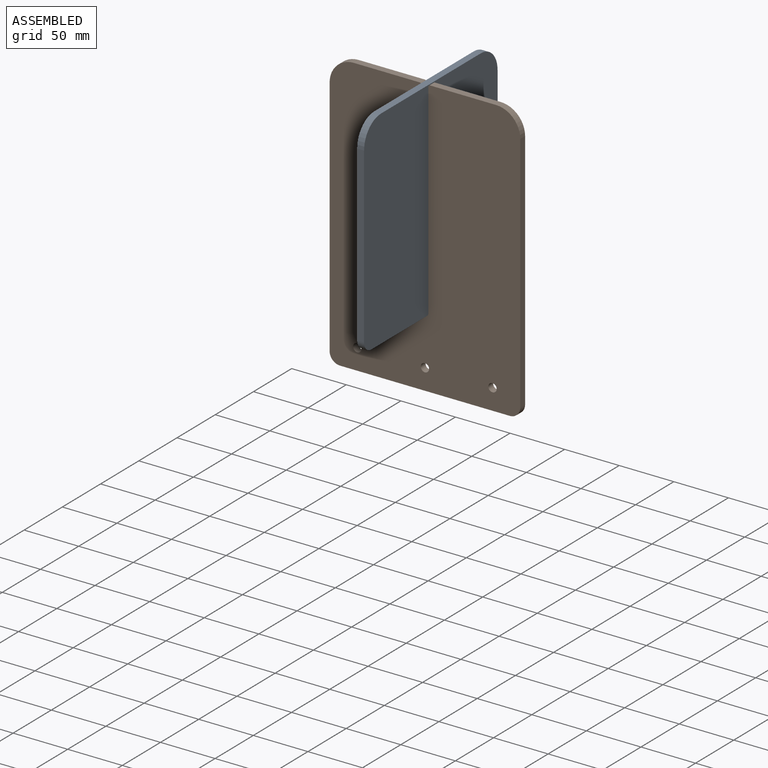
[diagram: assembled view]
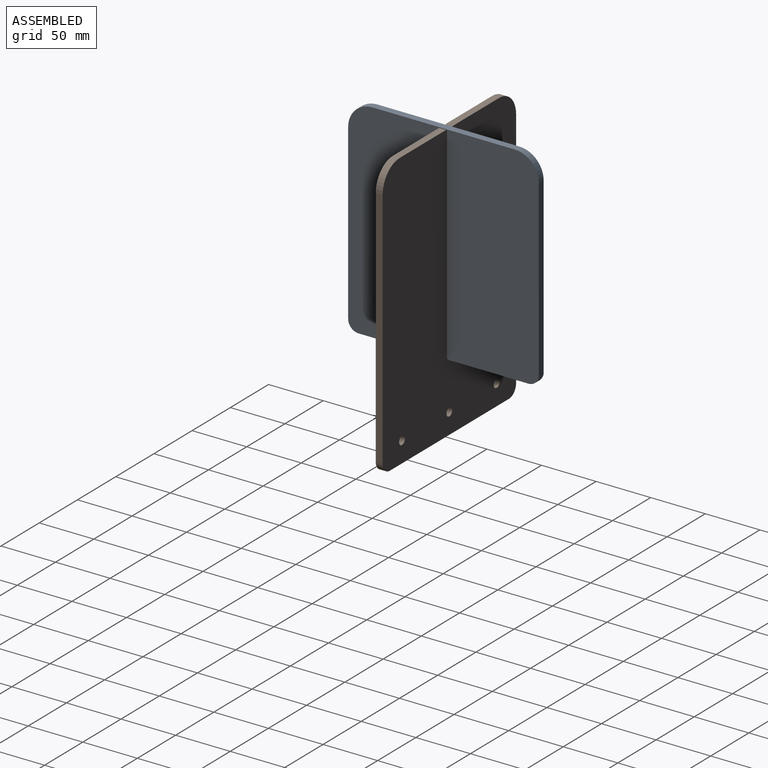
[diagram: assembled view, second angle]
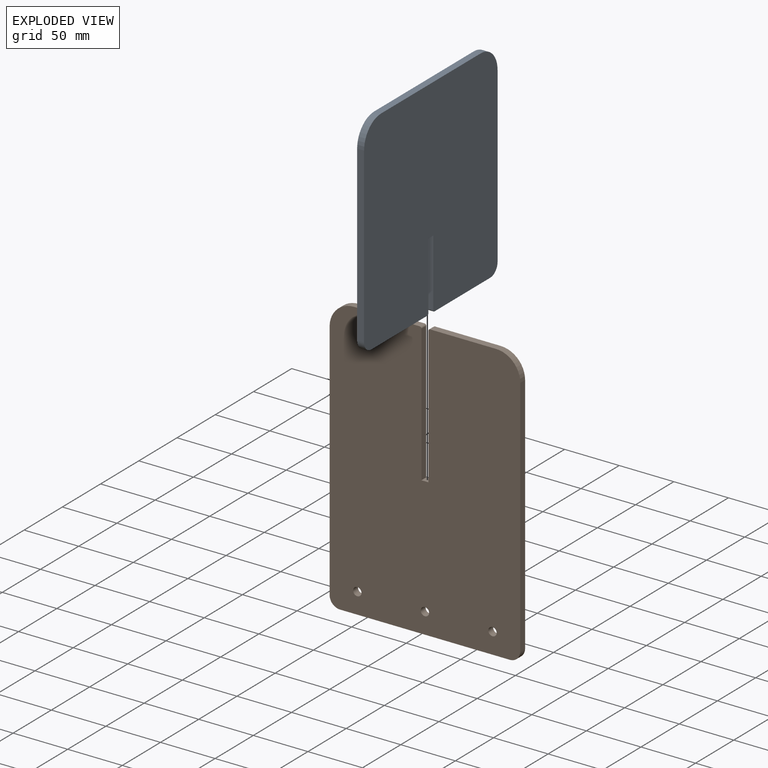
[diagram: exploded view]
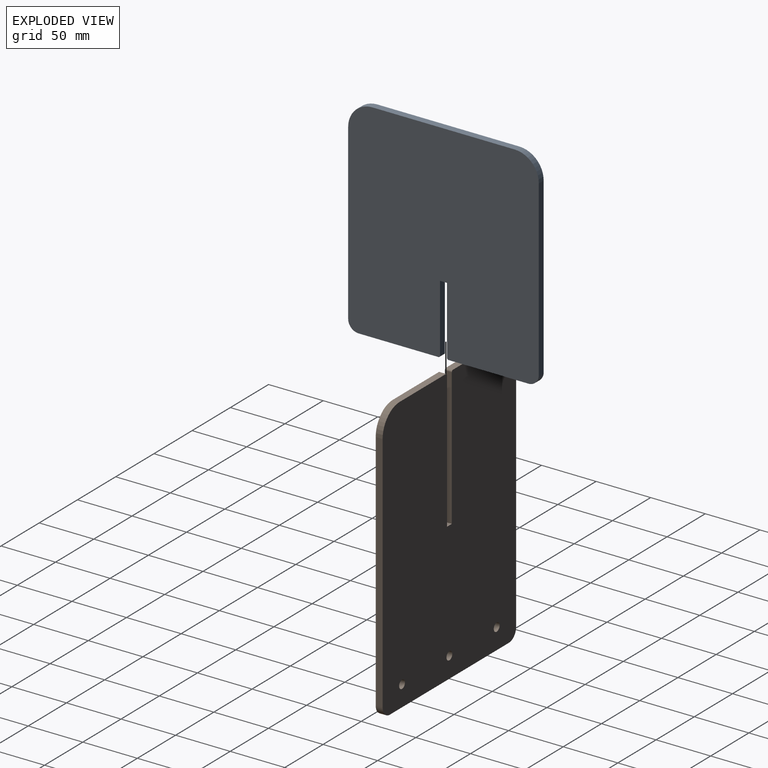
[diagram: exploded view, second angle]
ASSEMBLY  parts=2 mates=2
PART A: 16 faces, bbox 6.4x174.6x190.5 mm
  f0: plane 6.35x6.35mm, normal (0,0,-1), area 40.3mm2, adj f1,f11,f12,f13
  f1: plane 61.98x6.35mm, normal (0,-1,0), area 393.5mm2, adj f0,f12,f13,f14
  f2: plane 73.1x6.35mm, normal (0,0,-1), area 464.2mm2, adj f3,f12,f13,f14
  f3: cylinder r=9.51mm len=9.51mm, axis (-1,0,0), area 94.9mm2, adj f2,f4,f12,f13
  f4: plane 158.76x6.35mm, normal (0,1,0), area 1008.1mm2, adj f3,f5,f12,f13
  f5: cylinder r=22.23mm len=22.23mm, axis (-1,0,0), area 221.7mm2, adj f4,f6,f12,f13
  f6: plane 130.18x6.35mm, normal (0,0,1), area 826.6mm2, adj f5,f7,f12,f13
  f7: cylinder r=22.23mm len=22.23mm, axis (-1,0,0), area 221.7mm2, adj f6,f8,f12,f13
  f8: plane 158.75x6.35mm, normal (0,-1,0), area 1008.1mm2, adj f7,f9,f12,f13
  f9: cylinder r=9.53mm len=9.53mm, axis (-1,0,0), area 94.9mm2, adj f8,f10,f12,f13
  f10: plane 73.1x6.35mm, normal (0,0,-1), area 464.2mm2, adj f9,f12,f13,f15
  f11: plane 61.98x6.35mm, normal (0,1,0), area 393.5mm2, adj f0,f12,f13,f15
  f12: plane 190.5x174.63mm, normal (1,0,0), area 32610.9mm2, adj f0,f1,f2,f3,f4,f5,f6,f7
  f13: plane 190.5x174.63mm, normal (-1,0,0), area 32610.9mm2, adj f0,f1,f2,f3,f4,f5,f6,f7
  f14: cylinder r=1.52mm len=6.35mm, axis (-1,0,0), area 15.2mm2, adj f1,f2,f12,f13
  f15: cylinder r=1.52mm len=6.35mm, axis (-1,0,0), area 15.2mm2, adj f10,f11,f12,f13
PART B: 19 faces, bbox 174.6x6.4x254 mm
  f0: plane 60.33x6.35mm, normal (0,0,1), area 383.1mm2, adj f1,f16,f17,f18
  f1: cylinder r=1.59mm len=6.35mm, axis (0,1,0), area 15.8mm2, adj f0,f2,f17,f18
  f2: plane 125.41x6.35mm, normal (-1,0,0), area 796.4mm2, adj f1,f3,f17,f18
  f3: plane 6.35x6.35mm, normal (0,0,1), area 40.3mm2, adj f2,f4,f17,f18
  f4: plane 125.41x6.35mm, normal (1,0,0), area 796.4mm2, adj f3,f5,f17,f18
  f5: cylinder r=1.59mm len=6.35mm, axis (0,1,0), area 15.8mm2, adj f4,f6,f17,f18
  f6: plane 60.33x6.35mm, normal (0,0,1), area 383.1mm2, adj f5,f7,f17,f18
  f7: cylinder r=22.23mm len=22.23mm, axis (0,1,0), area 221.7mm2, adj f6,f8,f17,f18
  f8: plane 222.25x6.35mm, normal (-1,0,0), area 1411.3mm2, adj f7,f9,f17,f18
  f9: cylinder r=9.53mm len=9.53mm, axis (0,1,0), area 95mm2, adj f8,f10,f17,f18
  f10: plane 155.58x6.35mm, normal (0,0,-1), area 987.9mm2, adj f9,f11,f17,f18
  f11: cylinder r=9.53mm len=9.53mm, axis (0,1,0), area 95mm2, adj f10,f12,f17,f18
  f12: plane 222.25x6.35mm, normal (1,0,0), area 1411.3mm2, adj f11,f16,f17,f18
  f13: cylinder r=3.81mm len=7.62mm, axis (0,1,0), area 152mm2, adj f17,f18
  f14: cylinder r=3.81mm len=7.62mm, axis (0,1,0), area 152mm2, adj f17,f18
  f15: cylinder r=3.81mm len=7.62mm, axis (0,1,0), area 152mm2, adj f17,f18
  f16: cylinder r=22.23mm len=22.23mm, axis (0,1,0), area 221.7mm2, adj f0,f12,f17,f18
  f17: plane 254x174.63mm, normal (0,-1,0), area 43159.5mm2, adj f0,f1,f2,f3,f4,f5,f6,f7
  f18: plane 254x174.63mm, normal (0,1,0), area 43159.5mm2, adj f0,f1,f2,f3,f4,f5,f6,f7
PLACE A t=(9.44,14.17,44.82)mm
PLACE B t=(9.44,14.17,13.07)mm fixed
MATE planar B.f3 <-> A.f0  axis (0,0,1) through (9.44,14.17,13.07)mm
MATE planar B.f4 <-> A.f13  axis (1,0,0) through (6.27,14.17,75.78)mm
